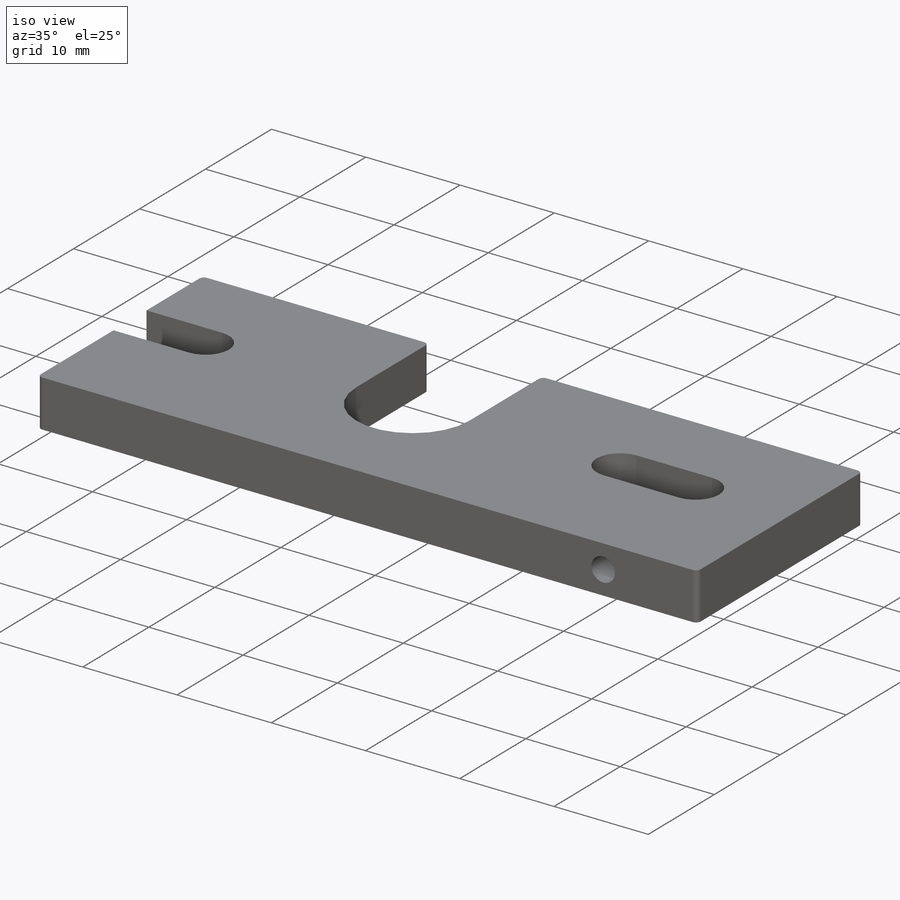
[diagram: iso view]
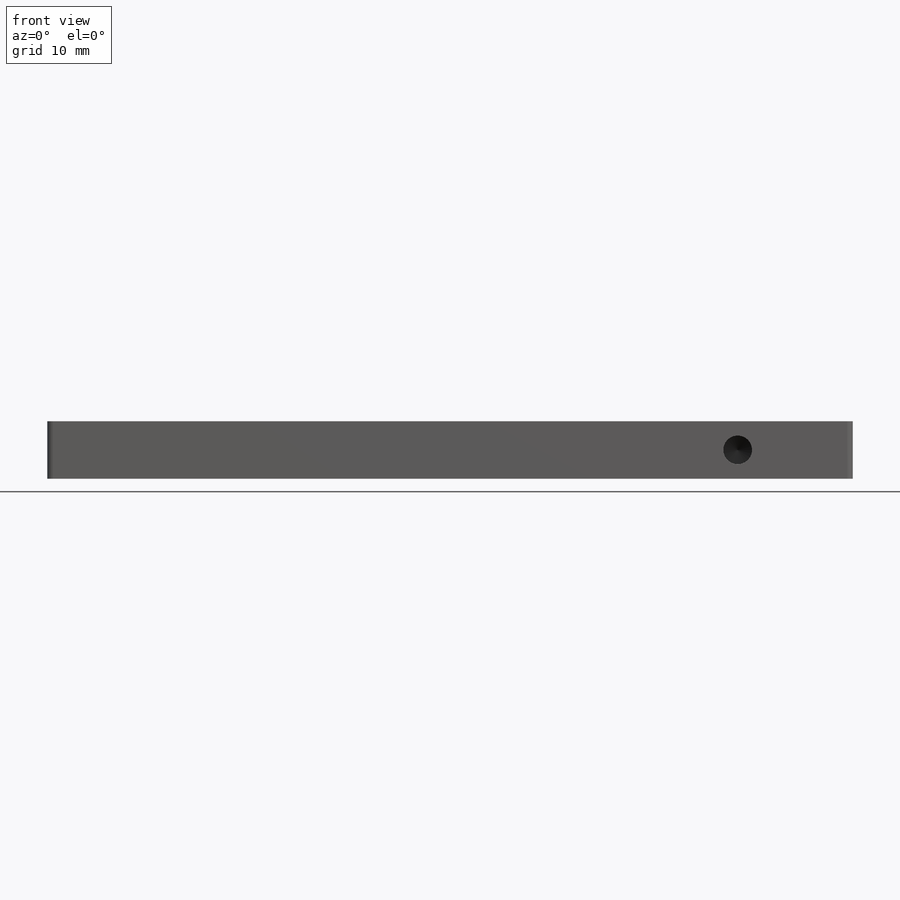
[diagram: front view]
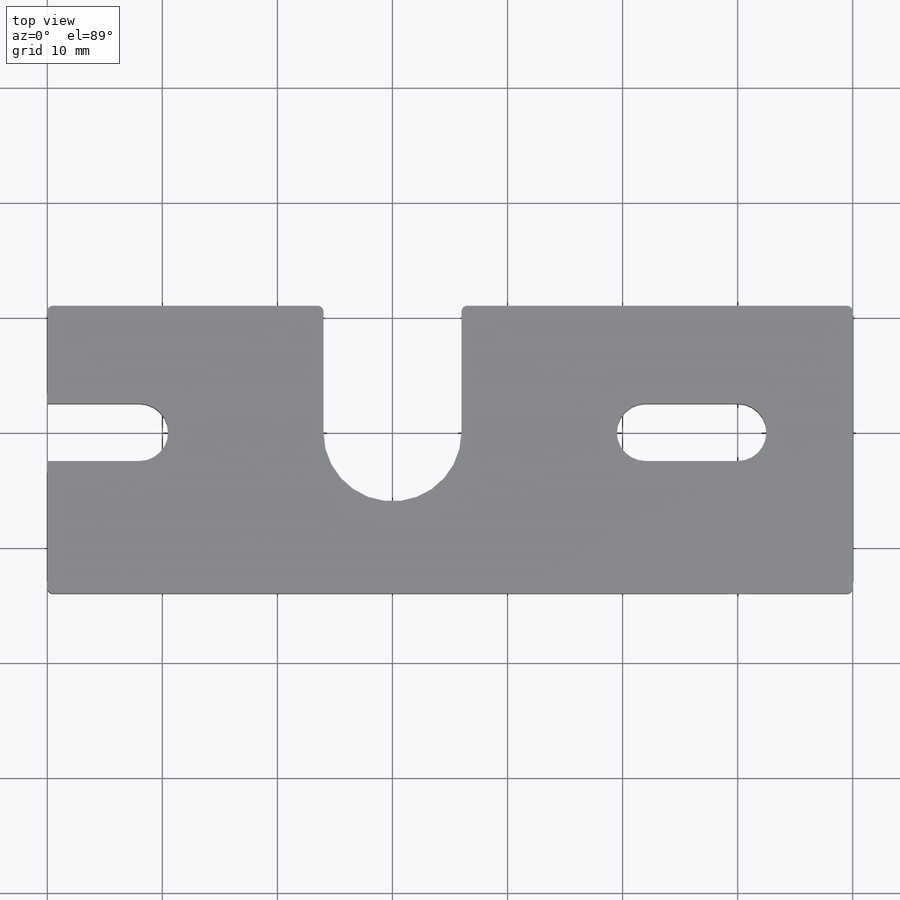
[diagram: top view]
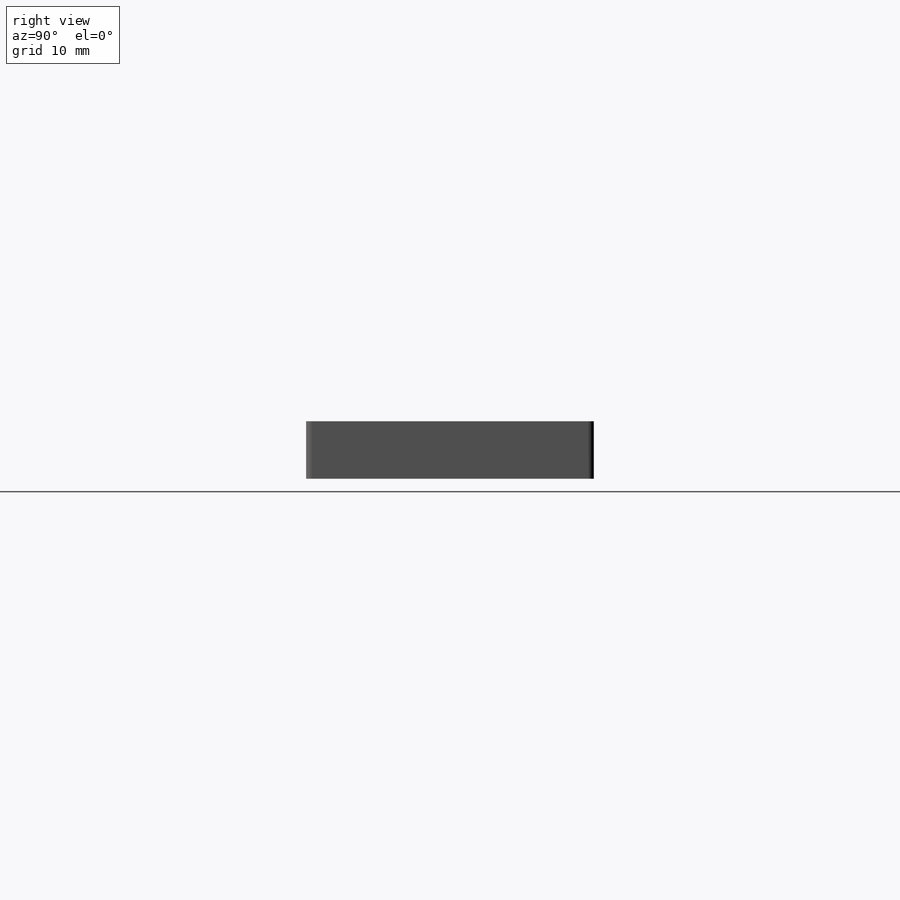
[diagram: right view]
SOLIDWORKS PART (.sldprt)
format: sldprt  version: not decoded by parser v0  size: 260,608 bytes
history: native  units: mm
features: sketch x5, cut_extrude x2, material x1, extrude x1, hole x1, thread x1, fillet x1 (+11 scaffold rows collapsed)
feature tree (23):
  scaffold x11  (default folders/planes/origin — collapsed)
  material  "6061-T6 (SS)"
  sketch  "Sketch1"  dims[c1.D1=12.0mm c1.D2=11.0mm c1.D3=25.0mm c1.D4=70.0mm c1.D5=8.44mm c1.D6=22.0mm c1.D7=8.0mm c1.D8=22.0mm c1.D9=24.0mm c2.D5=5.0mm]
  extrude  "Boss-Extrude1"  Depth=5mm
  sketch  "Sketch2"  dims[D1=18.0mm]
  cut_extrude  "Cut-Extrude1"  Depth=0.5mm
  sketch  "Sketch3"  dims[c1.D5=~1.264669mm c1.D6=~1.264669mm c1.D7=~2.678123mm c1.D8=~2.678123mm c1.D9=~2.454946mm c1.D10=~2.454946mm c1.D1=6.0mm c1.D2=7.0mm c1.D3=5.0mm c1.D4=1.15mm c2.D5=3.5mm c2.D6=4.0mm c2.D7=2.5mm c2.D8=2.5mm c2.D9=3.0mm c2.D10=3.0mm c2.D11=5.0mm c2.D12=5.0mm]
  cut_extrude  "Cut-Extrude2"  Depth=3mm
  hole  "M3x0.5 Tapped Hole1"  Diameter=2.5mm Depth=7.5mm
  sketch  "Sketch5"  dims[D1=10.0mm]
  sketch  "Sketch4"  dims[hole-wizard template sketch: 50 standard entries collapsed; hole parameters above]
  thread  "Hole Thread1"  Diameter=5mm  [1 undecoded]
  fillet  "Fillet1"  Radius=0.5mm
decode coverage: 11 of 11 modeling features carry decoded parameters
note: ~ marks probable driven/reference dimensions
note: 1 parameter value undecoded
note: suppression state not decoded; provenance and decode notes live in map.json
